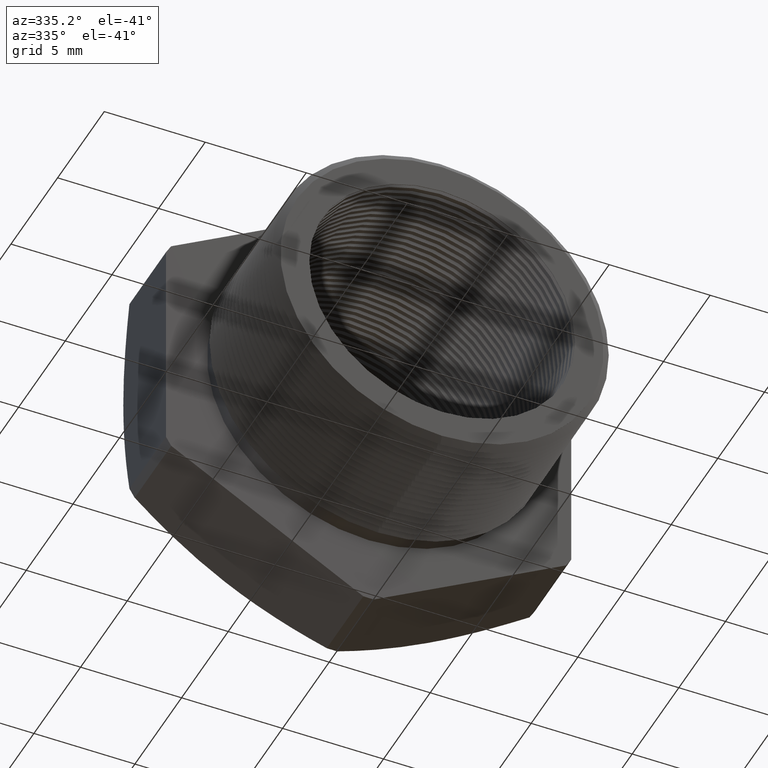
[diagram: clean part render]
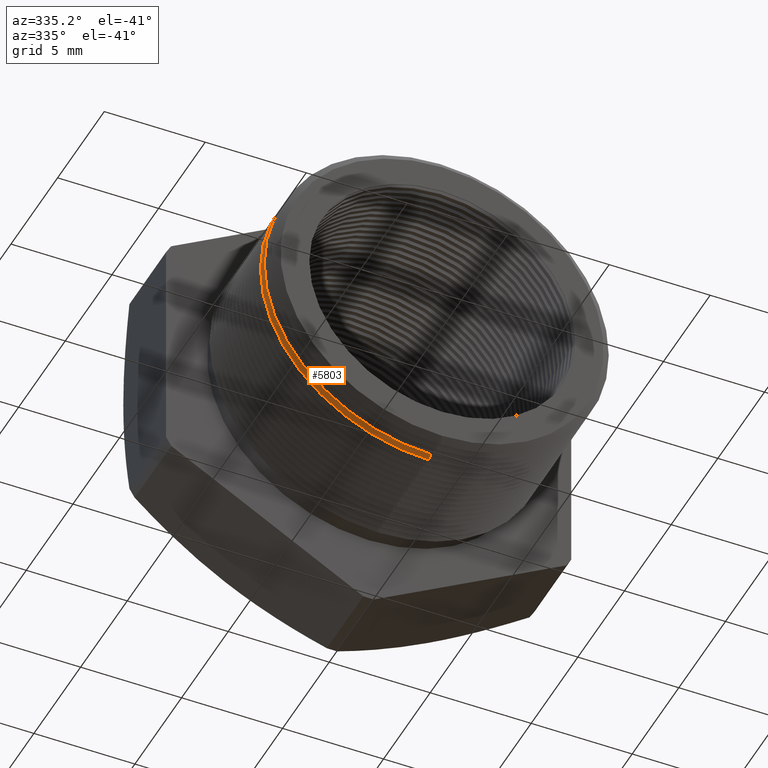
[diagram: same view with one face highlighted and labeled with its STEP entity id]
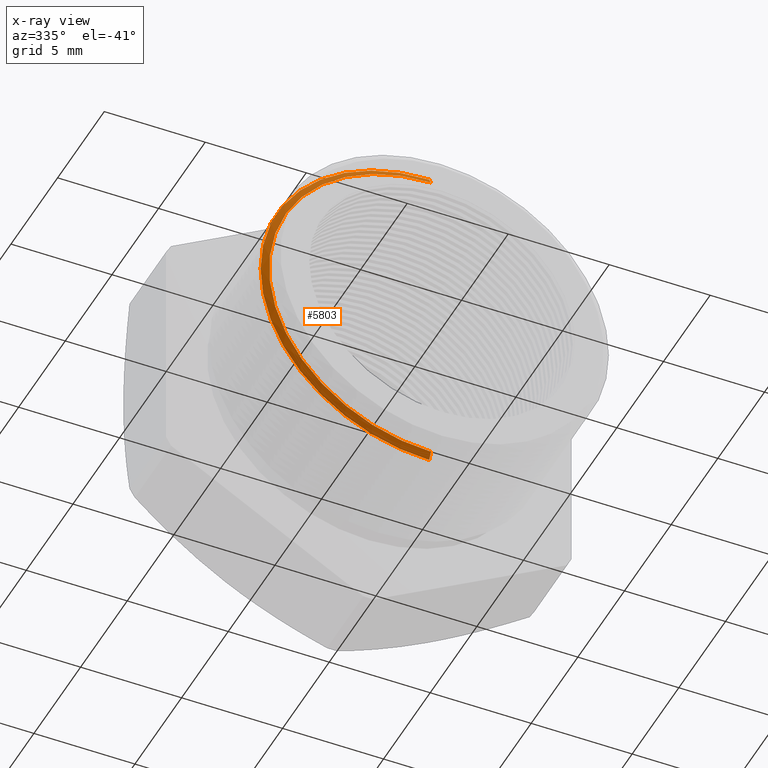
[diagram: x-ray of the same camera — body ghosted, the highlighted face saturated]
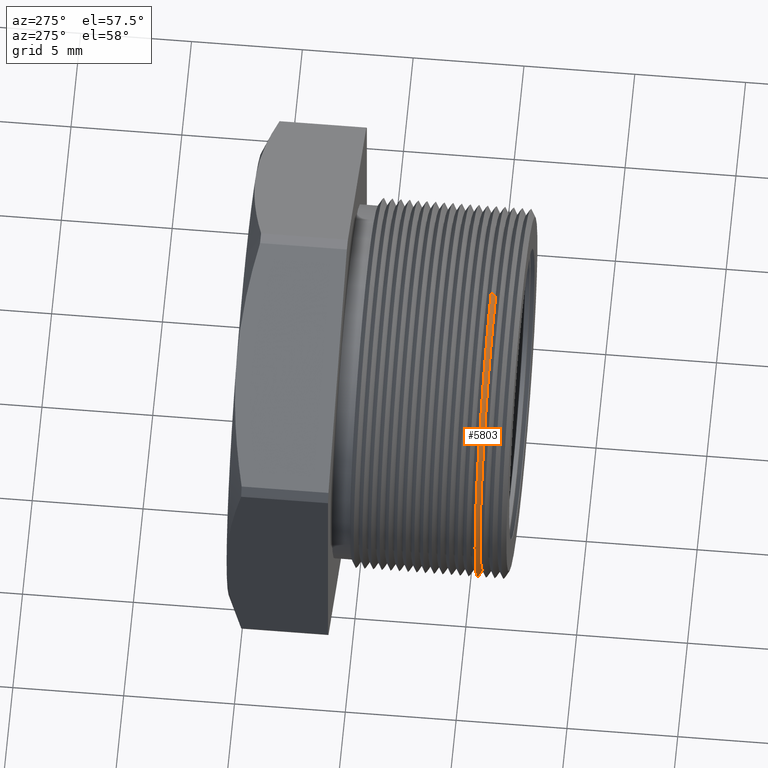
[diagram: same view with one face highlighted and labeled with its STEP entity id]
A machine part, auxiliary view. The second image highlights one B-rep face of the part: STEP entity #5803.
The next image is the same camera in x-ray: the body ghosted, the highlighted face saturated — about 0% of this face is hidden behind the body in this view.
A second angle (auxiliary view) of the same face is appended — the face is thin or edge-on in the first view.
In plain terms, the highlighted conical surface has half-angle 60 deg.
Its self-contained STEP definition (entity closure, byte-faithful):
#1350 = DIRECTION ( 'NONE',  ( 1.060575238724906300E-016, 0.5000000000000008900, -0.8660254037844380400 ) ) ;
#1351 = VECTOR ( 'NONE', #1350, 39.37007874015748100 ) ;
#1352 = CARTESIAN_POINT ( 'NONE',  ( 4.026318816969965600E-017, -0.02804510941705201300, -0.3287738815610546400 ) ) ;
#1353 = LINE ( 'NONE', #1352, #1351 ) ;
#1355 = CARTESIAN_POINT ( 'NONE',  ( 0.0000000000000000000, -0.02804510941705201300, -0.3287738815610546400 ) ) ;
#1376 = DIRECTION ( 'NONE',  ( 0.0000000000000000000, 0.5000000000000008900, 0.8660254037844380400 ) ) ;
#1377 = VECTOR ( 'NONE', #1376, 39.37007874015748100 ) ;
#1379 = CARTESIAN_POINT ( 'NONE',  ( 0.0000000000000000000, -0.02804510941705201300, 0.3287738815610546400 ) ) ;
#1380 = LINE ( 'NONE', #1379, #1377 ) ;
#1389 = CARTESIAN_POINT ( 'NONE',  ( 4.026318816969966200E-017, -0.02804510941705201300, 0.3287738815610546400 ) ) ;
#1531 = CARTESIAN_POINT ( 'NONE',  ( 3.944654523588147600E-017, -0.03574510941705204300, -0.3154370903427743400 ) ) ;
#3102 = DIRECTION ( 'NONE',  ( 0.0000000000000000000, 0.0000000000000000000, 1.000000000000000000 ) ) ;
#3103 = DIRECTION ( 'NONE',  ( -0.0000000000000000000, 1.000000000000000000, -0.0000000000000000000 ) ) ;
#3104 = CARTESIAN_POINT ( 'NONE',  ( 0.0000000000000000000, -0.02804510941705201300, 0.0000000000000000000 ) ) ;
#3105 = AXIS2_PLACEMENT_3D ( 'NONE', #3104, #3103, #3102 ) ;
#3106 = CONICAL_SURFACE ( 'NONE', #3105, 0.3287738815610546400, 1.047197551196596700 ) ;
#3107 = FACE_OUTER_BOUND ( 'NONE', #5804, .T. ) ;
#3108 = DIRECTION ( 'NONE',  ( 0.0000000000000000000, 0.0000000000000000000, 1.000000000000000000 ) ) ;
#3109 = DIRECTION ( 'NONE',  ( -0.0000000000000000000, 1.000000000000000000, -0.0000000000000000000 ) ) ;
#3110 = CARTESIAN_POINT ( 'NONE',  ( 0.0000000000000000000, -0.02804510941705201300, 0.0000000000000000000 ) ) ;
#3111 = AXIS2_PLACEMENT_3D ( 'NONE', #3110, #3109, #3108 ) ;
#3112 = CIRCLE ( 'NONE', #3111, 0.3287738815610546400 ) ;
#3160 = CIRCLE ( 'NONE', #3166, 0.3154370903427743400 ) ;
#3166 = AXIS2_PLACEMENT_3D ( 'NONE', #3228, #3227, #3226 ) ;
#3226 = DIRECTION ( 'NONE',  ( 0.0000000000000000000, 0.0000000000000000000, -1.000000000000000000 ) ) ;
#3227 = DIRECTION ( 'NONE',  ( 0.0000000000000000000, -1.000000000000000000, 0.0000000000000000000 ) ) ;
#3228 = CARTESIAN_POINT ( 'NONE',  ( 0.0000000000000000000, -0.03574510941705204300, 0.0000000000000000000 ) ) ;
#4174 = VERTEX_POINT ( 'NONE', #7124 ) ;
#4863 = VERTEX_POINT ( 'NONE', #1355 ) ;
#4867 = EDGE_CURVE ( 'NONE', #4938, #4863, #1353, .T. ) ;
#4886 = VERTEX_POINT ( 'NONE', #1389 ) ;
#4892 = EDGE_CURVE ( 'NONE', #4174, #4886, #1380, .T. ) ;
#4938 = VERTEX_POINT ( 'NONE', #1531 ) ;
#5802 = EDGE_CURVE ( 'NONE', #4863, #4886, #3112, .T. ) ;
#5803 = ADVANCED_FACE ( 'NONE', ( #3107 ), #3106, .T. ) ;
#5804 = EDGE_LOOP ( 'NONE', ( #5805, #5806, #5859, #5860 ) ) ;
#5805 = ORIENTED_EDGE ( 'NONE', *, *, #4867, .F. ) ;
#5806 = ORIENTED_EDGE ( 'NONE', *, *, #5858, .F. ) ;
#5858 = EDGE_CURVE ( 'NONE', #4174, #4938, #3160, .T. ) ;
#5859 = ORIENTED_EDGE ( 'NONE', *, *, #4892, .T. ) ;
#5860 = ORIENTED_EDGE ( 'NONE', *, *, #5802, .F. ) ;
#7124 = CARTESIAN_POINT ( 'NONE',  ( 0.0000000000000000000, -0.03574510941705204300, 0.3154370903427743400 ) ) ;